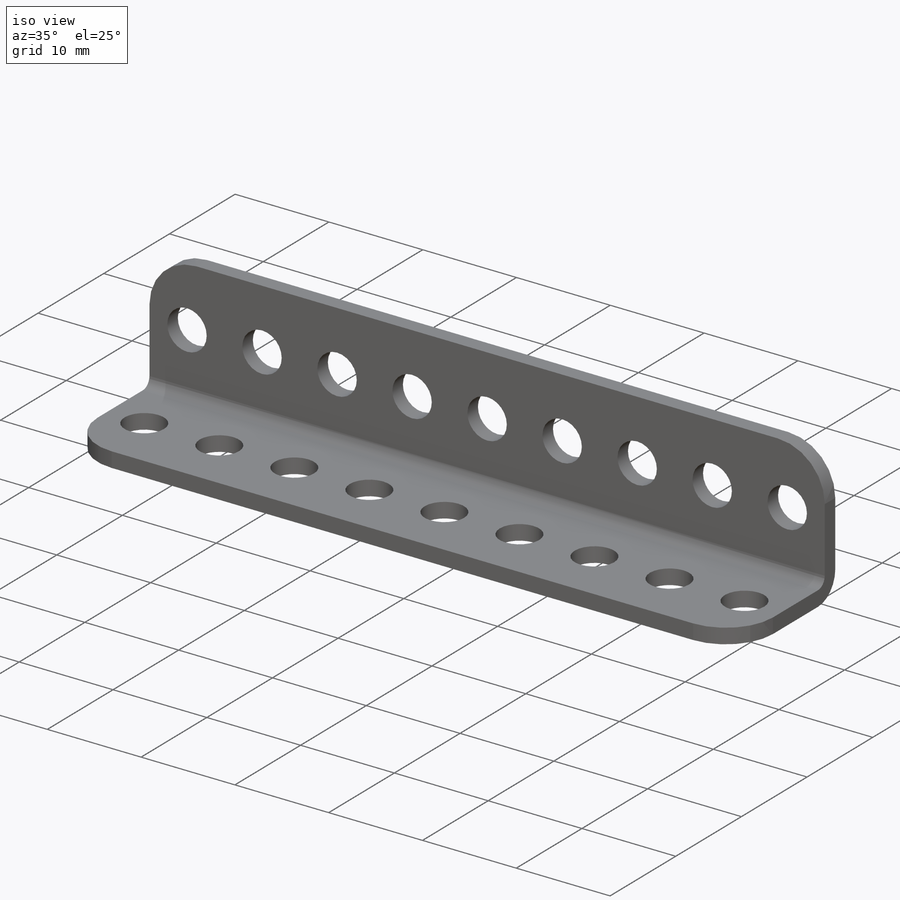
[diagram: iso view]
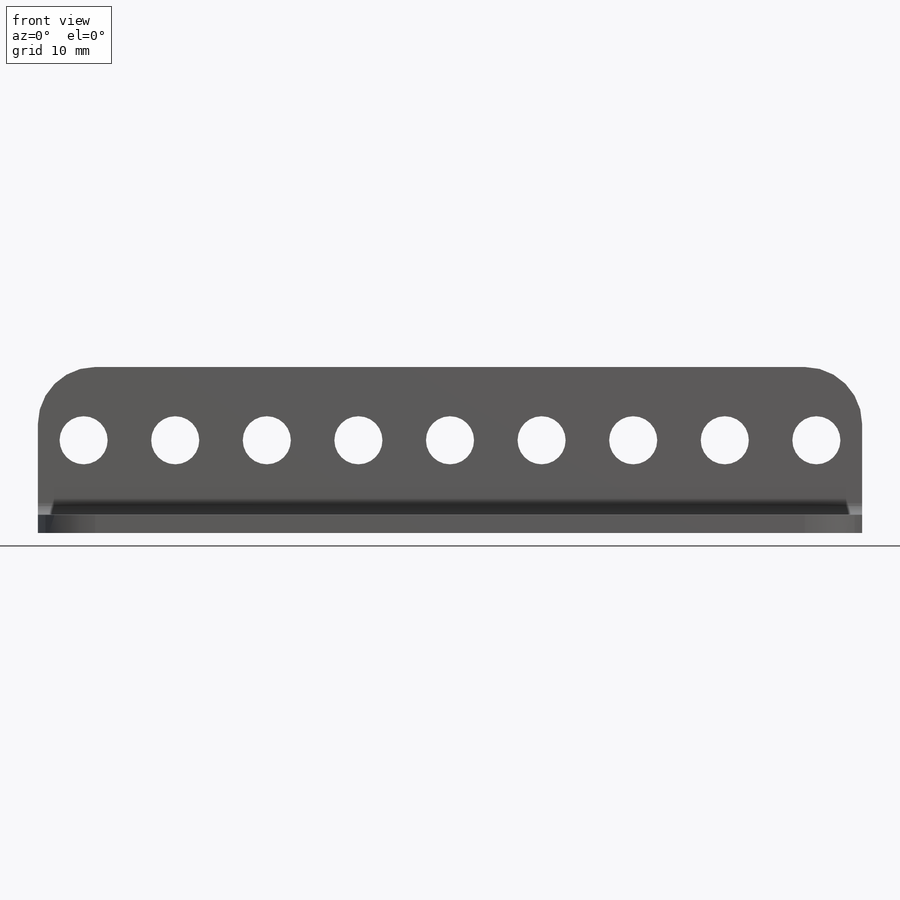
[diagram: front view]
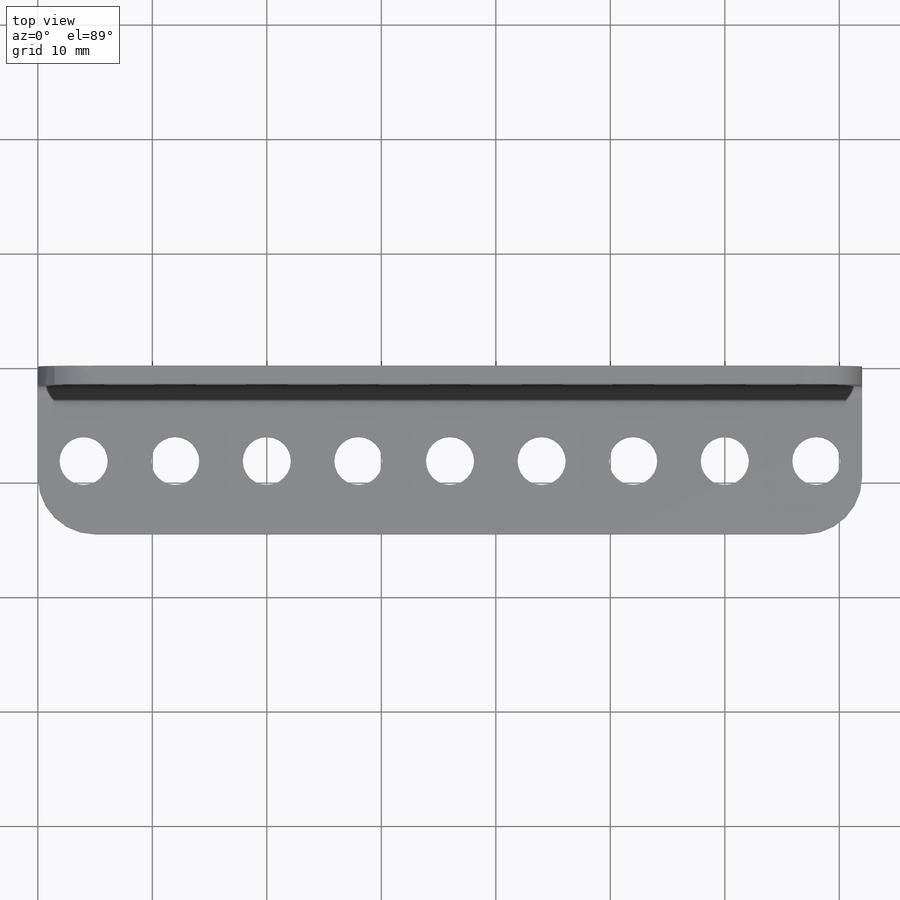
[diagram: top view]
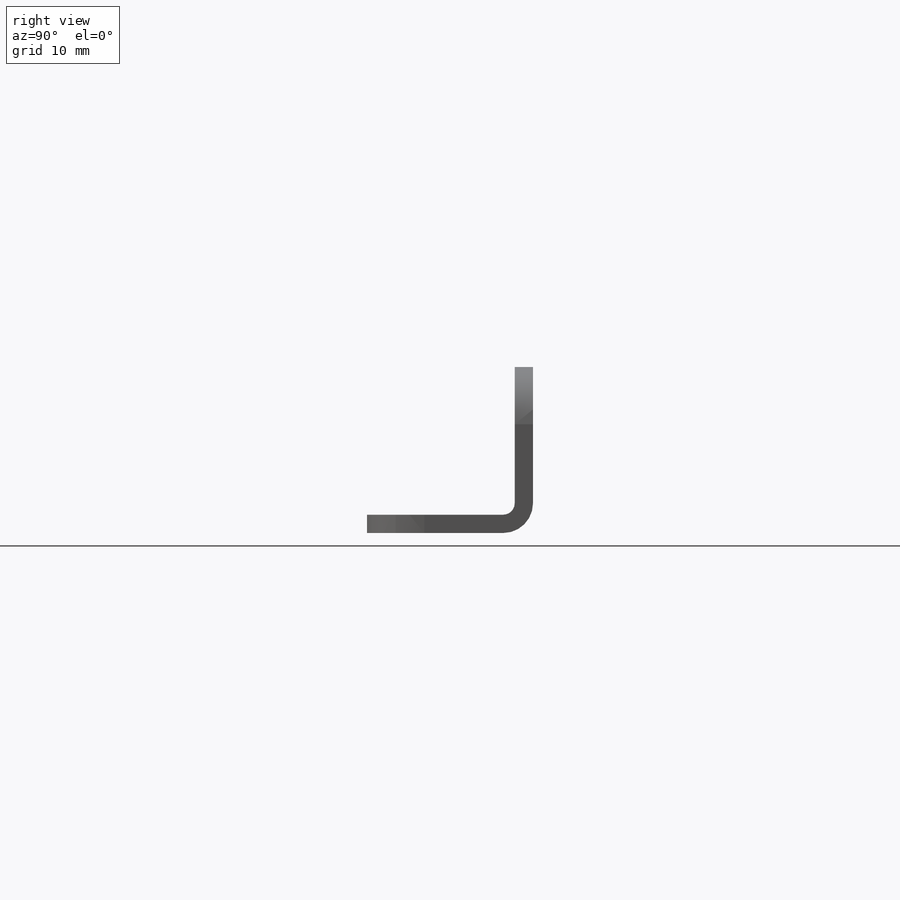
[diagram: right view]
SOLIDWORKS PART (.sldprt)
format: sldprt  version: not decoded by parser v0  size: 1,980,416 bytes
history: native  units: mm
features: sketch x13, sheet_metal_op x5, pattern_linear x4, cut_extrude x2, material x1, fillet x1 + 5 further entries (+13 scaffold rows collapsed; 4 parser-record rows omitted)
feature tree (48):
  scaffold x13  (default folders/planes/origin — collapsed)
  material  "1060 Alloy"
  "Design Table"
  sketch  "Sketch1"  dims[c1.D1=14.5mm c1.D2=14.5mm c2.D1=0.5mm c2.D2=0.5 c2.D3=0.0mm c2.D6=500.0mm]
  sheet_metal_op  "Base-Flange1"
  fillet  "Fillet1"  Radius=5mm
  sketch  "Sketch6"  dims[D1=4.2mm D2=4.0mm D3=8.1mm]
  cut_extrude  "Cut-Extrude1"  [1 undecoded]
  sketch  "Sketch7"  dims[D1=4.2mm D2=8.1mm D3=4.0mm]
  cut_extrude  "Cut-Extrude2"  [1 undecoded]
  pattern_linear  "LPattern1"  Count1=3 Count2=1 Spacing1=8mm Spacing2=10mm
  sketch  "Bend-Lines1"
  sketch  "Bounding-Box1"
  sheet_metal_op  "Sheet-Metal(1)"
  "Flat-Pattern(1)"
  sketch  "Bend-Lines2"
  sketch  "Bounding-Box2"
  parser-record x4  (decoder bookkeeping rows leaked as tree rows — omitted from the tree; the rows remain in map.json)
  pattern_linear  "Sheet-Metal(2)"  Spacing1=1mm Spacing2=500mm  [1 undecoded]
  sheet_metal_op  "Flat-Pattern(1)"
  sketch  "Bend-Lines2"
  sketch  "Bounding-Box2"
  "Flatten-<BaseBend1>1"
  pattern_linear  "Sheet-Metal(3)"  Spacing1=1mm Spacing2=500mm  [1 undecoded]
  sheet_metal_op  "Flat-Pattern(1)"
  sketch  "Bend-Lines2"
  sketch  "Bounding-Box2"
  "Flatten-<BaseBend1>1"
  pattern_linear  "Sheet-Metal(4)"  Spacing1=1mm Spacing2=500mm  [1 undecoded]
  sheet_metal_op  "Flat-Pattern(1)"
  sketch  "Bend-Lines2"
  sketch  "Bounding-Box2"
  "Flatten-<BaseBend1>1"
decode coverage: 8 of 25 modeling features carry decoded parameters; 5 rows unclassified (native names shown)
note: 5 parameter values undecoded
note: suppression state not decoded; provenance and decode notes live in map.json
